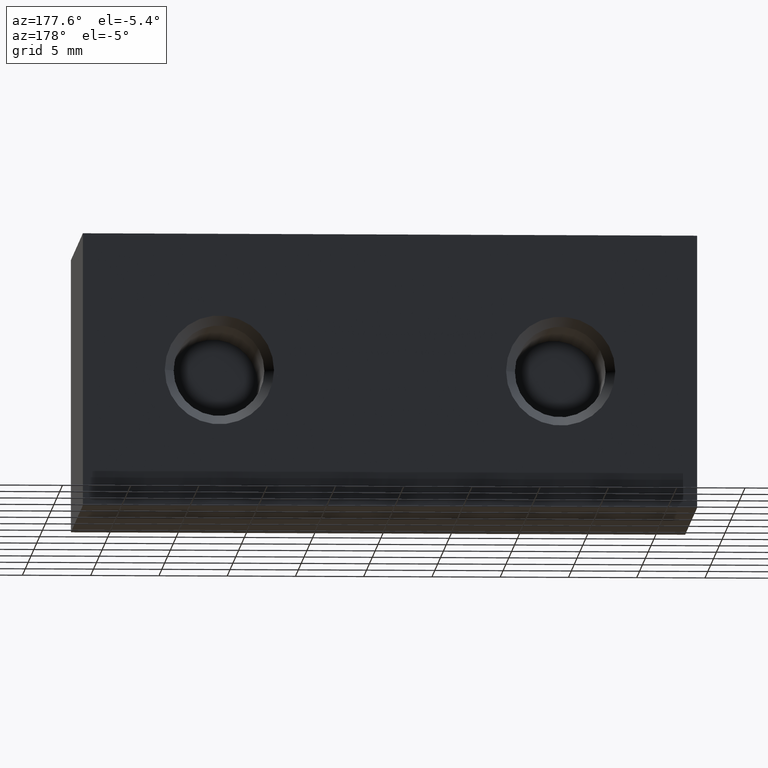
[diagram: clean part render]
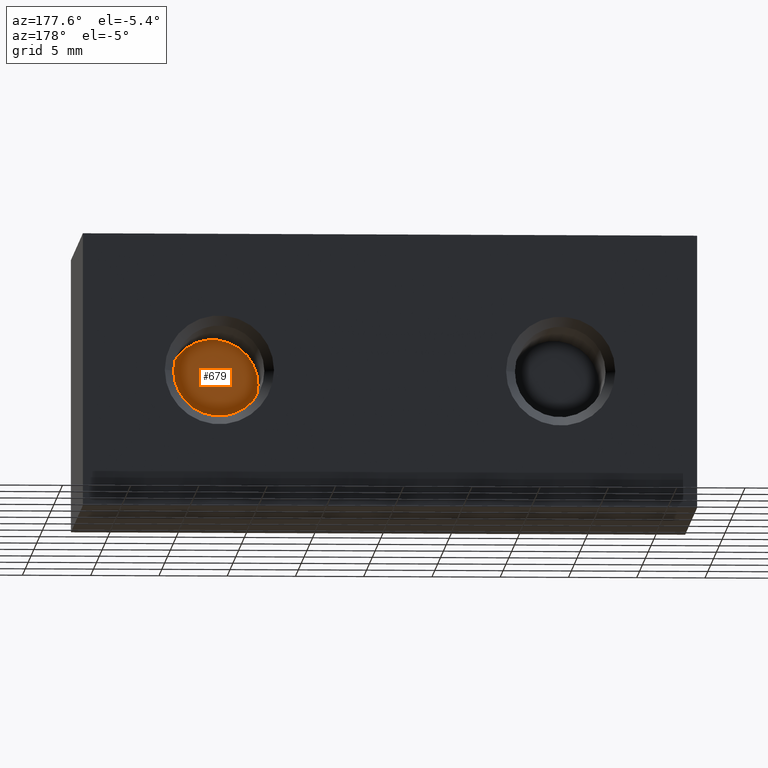
[diagram: same view with one face highlighted and labeled with its STEP entity id]
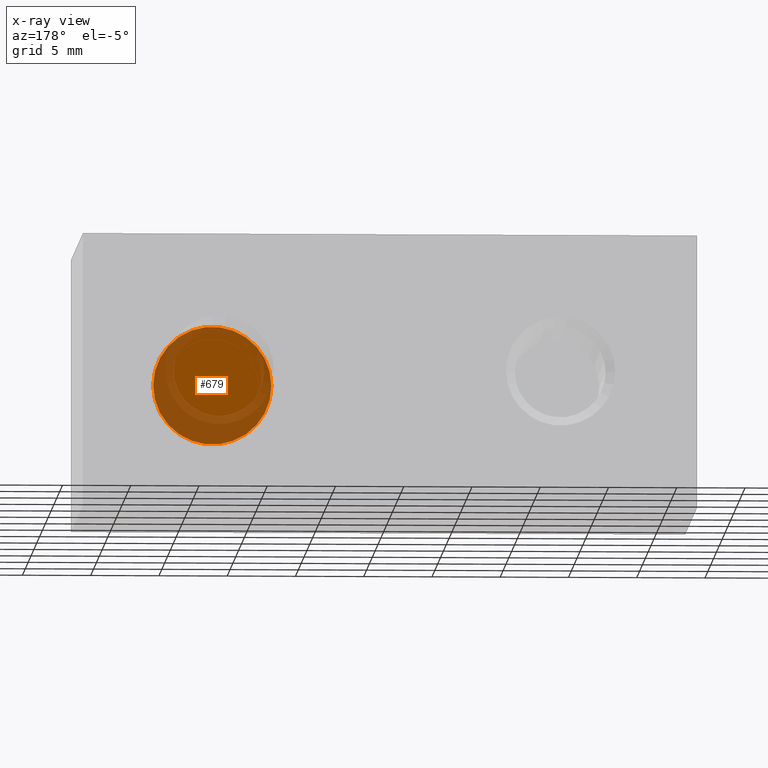
[diagram: x-ray of the same camera — body ghosted, the highlighted face saturated]
A machine part, auxiliary view. The second image highlights one B-rep face of the part: STEP entity #679.
The next image is the same camera in x-ray: the body ghosted, the highlighted face saturated — about 48% of this face is hidden behind the body in this view.
In plain terms, the highlighted planar face has unit normal (0, 1, 0).
Its self-contained STEP definition (entity closure, byte-faithful):
#57=PLANE('',#787);
#85=FACE_OUTER_BOUND('',#122,.T.);
#122=EDGE_LOOP('',(#483,#484));
#267=CIRCLE('',#785,4.33);
#268=CIRCLE('',#786,4.33);
#305=VERTEX_POINT('',#1088);
#306=VERTEX_POINT('',#1090);
#377=EDGE_CURVE('',#306,#305,#267,.T.);
#378=EDGE_CURVE('',#305,#306,#268,.T.);
#483=ORIENTED_EDGE('',*,*,#377,.T.);
#484=ORIENTED_EDGE('',*,*,#378,.T.);
#679=ADVANCED_FACE('',(#85),#57,.T.);
#785=AXIS2_PLACEMENT_3D('',#1091,#880,#881);
#786=AXIS2_PLACEMENT_3D('',#1092,#882,#883);
#787=AXIS2_PLACEMENT_3D('',#1093,#884,#885);
#880=DIRECTION('center_axis',(0.,1.,0.));
#881=DIRECTION('ref_axis',(1.,0.,0.));
#882=DIRECTION('center_axis',(0.,1.,0.));
#883=DIRECTION('ref_axis',(1.,0.,0.));
#884=DIRECTION('center_axis',(0.,1.,0.));
#885=DIRECTION('ref_axis',(1.,0.,0.));
#1088=CARTESIAN_POINT('',(8.17,8.6,-1.69017398521951E-15));
#1090=CARTESIAN_POINT('',(16.83,8.6,-2.22044604925031E-15));
#1091=CARTESIAN_POINT('Origin',(12.5,8.6,-2.22044604925031E-15));
#1092=CARTESIAN_POINT('Origin',(12.5,8.6,-2.22044604925031E-15));
#1093=CARTESIAN_POINT('Origin',(12.5,8.6,-2.22044604925031E-15));